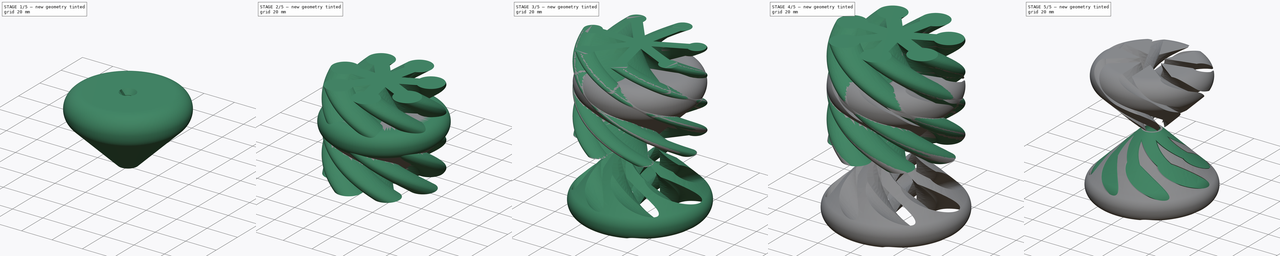
[diagram: build sequence overview — one tinted view per stage of 5, left to right]
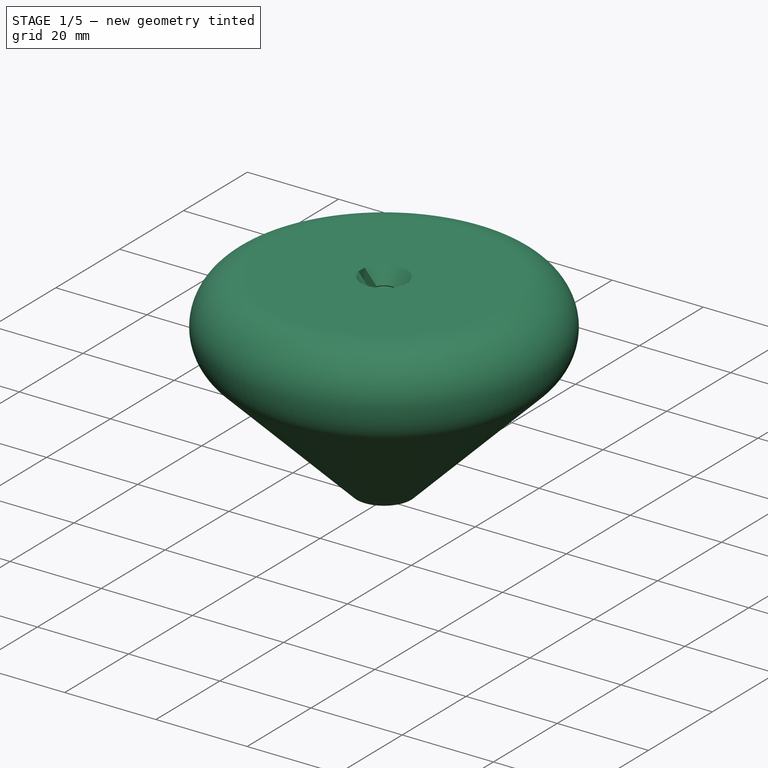
[diagram: stage 1 of 5 — iso view after this stage's code; geometry added in this stage tinted green]
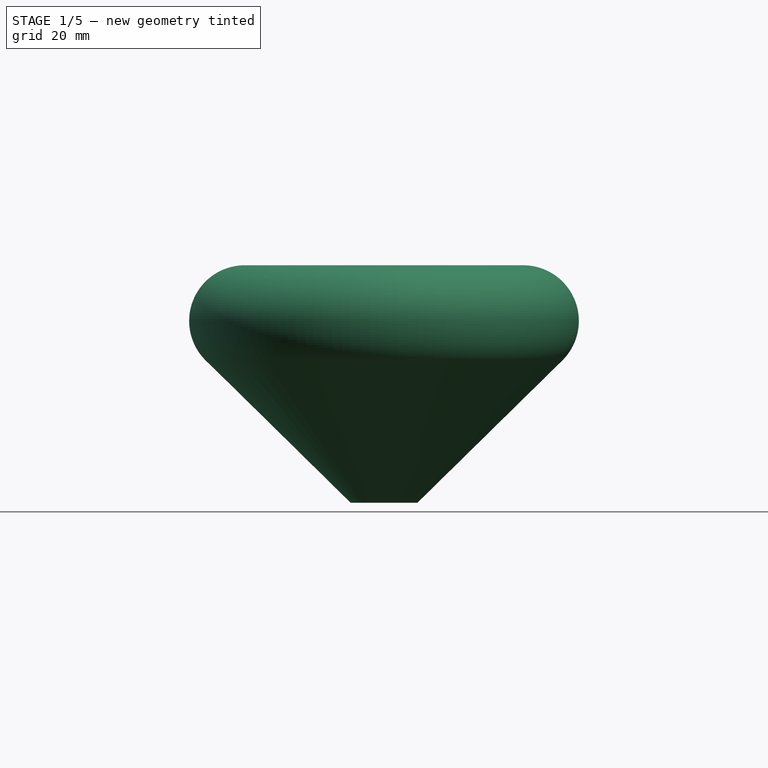
[diagram: stage 1 of 5 — front view after this stage's code; geometry added in this stage tinted green]
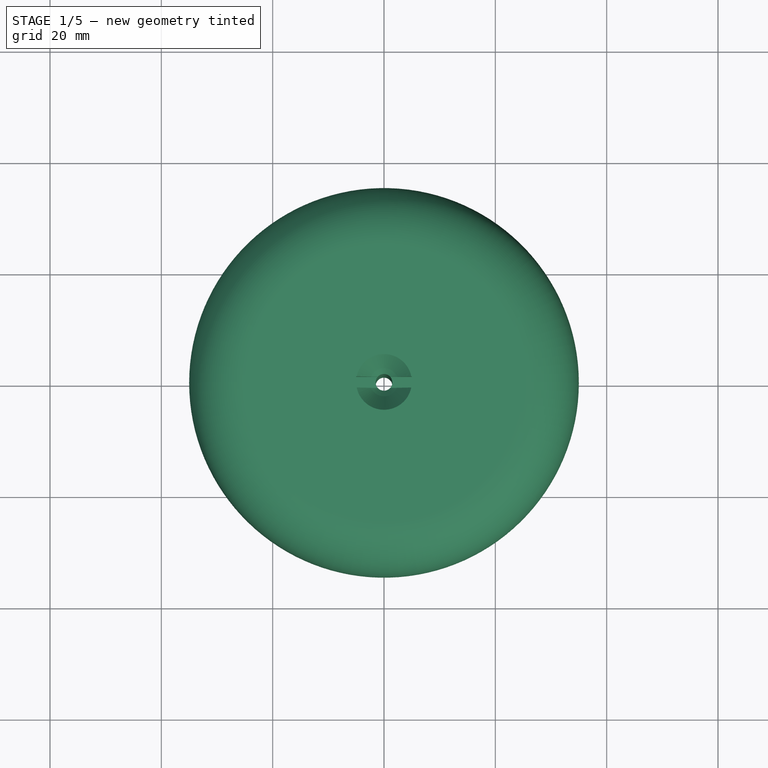
[diagram: stage 1 of 5 — top view after this stage's code; geometry added in this stage tinted green]
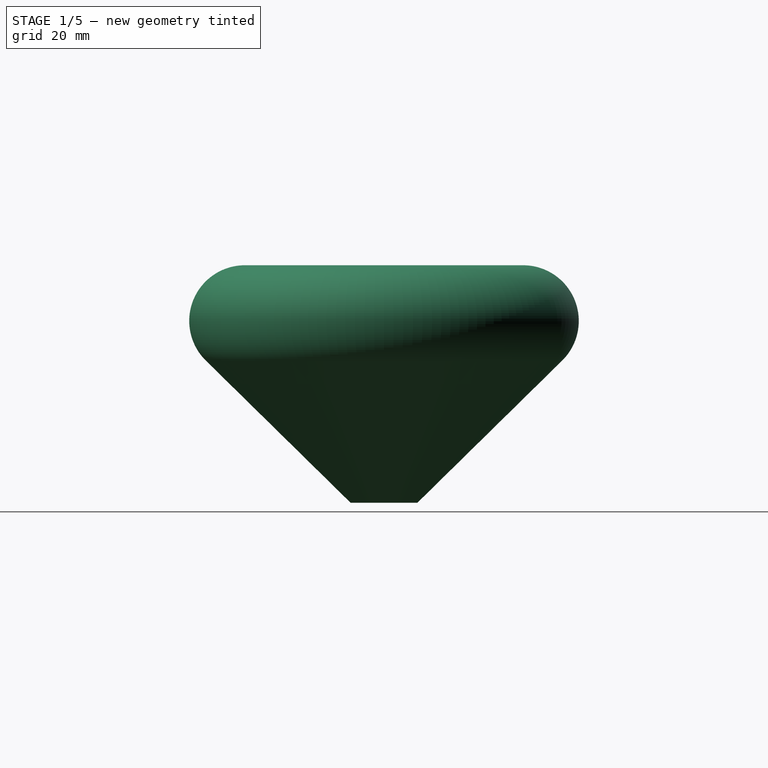
[diagram: stage 1 of 5 — right view after this stage's code; geometry added in this stage tinted green]
FCSTD DOCUMENT  (FreeCAD 1.0R38642 (Git))
Label: SpinningTop
License: Creative Commons Attribution-ShareAlike 4.0
LicenseURL: https://creativecommons.org/licenses/by-sa/4.0/
objects: Sketcher::SketchObject×7, PartDesign::Body×6, PartDesign::AdditiveHelix×3, PartDesign::PolarPattern×3, Part::Cut×3, PartDesign::Revolution×2, PartDesign::Pocket×2, Part::Sphere×1, Spreadsheet::Sheet×1, Part::Offset2D×1, Part::MultiCommon×1, PartDesign::FeatureBase×1
note: 55 computed .brp shape members not serialized (recipe doc carries the construction recipe); baked Part::Feature solids carry a one-line shape summary decoded from their .brp

FEATURE [Sketcher::SketchObject] Sketch  label="profile"
  ArcFitTolerance = 1e-06
  AttachmentSupport = -> [XZ_Plane]
  FullyConstrained = true
  MakeInternals = false
  MapMode = 5
  Placement = pos=(0,0,0) rot=(1,0,0;1.5708rad)
  expr: Constraints[22] = <<dims>>.radius
  expr: Constraints[24] = <<dims>>.ball_radius
  expr: Constraints[27] = <<dims>>.height + 6 mm
  expr: Constraints[4] = <<dims>>.ball_radius + 1 mm
  expr: Constraints[6] = <<dims>>.height * 2 / 3 + 6 mm
  sketch-geometry (18):
    g0: LineSegment StartX=0 StartY=0 StartZ=0 EndX=6 EndY=0 EndZ=0
    g1: LineSegment StartX=6 StartY=0 StartZ=0 EndX=32.0056 EndY=25.5307 EndZ=0
    g2: LineSegment [constr] StartX=0 StartY=42.6667 StartZ=0 EndX=0 EndY=0 EndZ=0
    g3: LineSegment [constr] StartX=5 StartY=52.6667 StartZ=0 EndX=5 EndY=61 EndZ=0
    g4: LineSegment [constr] StartX=5 StartY=61 StartZ=0 EndX=0 EndY=61 EndZ=0
    g5: LineSegment StartX=25 StartY=42.6667 StartZ=0 EndX=15 EndY=42.6667 EndZ=0
    g6: ArcOfCircle CenterX=25 CenterY=32.6667 CenterZ=0 NormalX=0 NormalY=0 NormalZ=1 AngleXU=0 Radius=10 StartAngle=5.48857 EndAngle=7.85398
    g7: GeomPoint [constr] X=49.4603 Y=42.6667 Z=0
    g8: ArcOfCircle [constr] CenterX=15 CenterY=52.6667 CenterZ=0 NormalX=0 NormalY=0 NormalZ=1 AngleXU=0 Radius=10 StartAngle=3.14159 EndAngle=4.71239
    g9: LineSegment [constr] StartX=35 StartY=0 StartZ=0 EndX=35 EndY=40 EndZ=0
    g10: LineSegment [constr] StartX=0 StartY=42.6667 StartZ=0 EndX=0 EndY=61 EndZ=0
    g11: LineSegment [constr] StartX=6 StartY=0 StartZ=0 EndX=32.0056 EndY=26.0056 EndZ=0
    g12: LineSegment StartX=15 StartY=42.6667 StartZ=0 EndX=5 EndY=42.6667 EndZ=0
    g13: LineSegment StartX=0 StartY=0 StartZ=0 EndX=0 EndY=36.7079 EndZ=0
    g14: LineSegment [constr] StartX=0 StartY=36.7079 StartZ=0 EndX=5 EndY=42.6667 EndZ=0
    g15: LineSegment StartX=0 StartY=36.7079 StartZ=0 EndX=2.72388 EndY=39.4318 EndZ=0
    g16: LineSegment StartX=2.72388 StartY=39.4318 StartZ=0 EndX=2.52388 EndY=39.7157 EndZ=0
    g17: LineSegment StartX=2.52388 StartY=39.7157 StartZ=0 EndX=5 EndY=42.6667 EndZ=0
  constraints (52):
    c: Coincident(g-1,g0)
    c: PointOnObject(g0,g-1)
    c: Coincident(g0,g1)
    c: PointOnObject(g2,g-2)
    c: DistanceX(g0,g0) = 6
    c: Coincident(g2,g0)
    c: DistanceY(g2,g2) = 42.6667
    c: Coincident(g3,g4)
    c: Vertical(g3)
    c: Horizontal(g4)
    c: PointOnObject(g4,g-2)
    c: Horizontal(g5)
    c: PointOnObject(g7,g5)
    c: PointOnObject(g7,g1)
    c: Tangent(g5,g6) = -1.5708
    c: Tangent(g1,g6) = -1.5708
    c: Tangent(g5,g8) = 1.5708
    c: Tangent(g3,g8) = 1.5708
    c: PointOnObject(g9,g-1)
    c: Vertical(g9)
    c: DistanceY(g9,g9) = 40
    c: Tangent(g6,g9)
    c: Distance(g9,g2) = 35
    c: Horizontal(g5,g2)
    c: DistanceX(g4,g4) = 5
    c: Radius(g6) = 10
    c: Equal(g6,g8)
    c: DistanceY(g-1,g4) = 61
    c: Coincident(g10,g2)
    c: Coincident(g10,g4)
    c: Coincident(g11,g0)
    c: Vertical(g11,g1)
    c: Angle(g-1,g11,g0) = 0.785398
    c: DistanceY(g-1,g11) = 26.0056  'min_height'
    c: DistanceY(g-1,g1) = 25.5307  'actual_height'
    c: DistanceY(g0,g4) = 61  'corrected_height'
    c: Coincident(g12,g5)
    c: Horizontal(g12)
    c: Vertical(g12,g3)
    c: Coincident(g0,g13)
    c: PointOnObject(g13,g2)
    c: Coincident(g13,g14)
    c: Coincident(g14,g12)
    c: Angle(g14,g-2,g13) = 0.698132
    c: Coincident(g13,g15)
    c: Coincident(g15,g16)
    c: PointOnObject(g16,g14)
    c: Coincident(g16,g17)
    c: Coincident(g17,g12)
    c: Angle(g15,g10,g13) = 0.785398
    c: DistanceX(g16,g15) = 0.2
    c: Equal(g17,g15)
FEATURE [PartDesign::Revolution] Revolution
  Angle = 360
  Angle2 = 60
  Axis = (0,2e-16,1)
  Base = (0,0,0)
  Placement = pos=(0,0,0) rot=(1,0,0;1.5708rad)
  Profile = -> Sketch
  ReferenceAxis = -> Sketch [V_Axis]
  Reversed = true
  Suppressed = false
  Type = 0
FEATURE [Sketcher::SketchObject] Sketch007
  ArcFitTolerance = 1e-06
  AttachmentSupport = -> [Revolution]
  FullyConstrained = true
  MakeInternals = false
  MapMode = 5
  Placement = pos=(0,9.5e-15,42.6667) rot=(0,0,1;3.14159rad)
  sketch-geometry (1):
    g0: Circle CenterX=0 CenterY=0 CenterZ=0 NormalX=0 NormalY=0 NormalZ=1 AngleXU=0 Radius=1.5
  constraints (2):
    c: Coincident(g0,g-1)
    c: Diameter(g0) = 3
FEATURE [PartDesign::Pocket] Pocket
  BaseFeature = -> Revolution
  Direction = (0,0,-1)
  Length = 5
  Length2 = 5
  Placement = pos=(0,0,0) rot=(1,0,0;1.5708rad)
  Profile = -> Sketch007
  ReferenceAxis = -> Sketch007 [N_Axis]
  Suppressed = false
  Type = 1
FEATURE [Sketcher::SketchObject] Sketch008
  ArcFitTolerance = 1e-06
  AttachmentSupport = -> [Revolution]
  ExternalGeometry = -> [Revolution]
  FullyConstrained = true
  MakeInternals = false
  MapMode = 5
  Placement = pos=(0,9.5e-15,42.6667) rot=(0,0,1;3.14159rad)
  sketch-geometry (5):
    g0: LineSegment StartX=-5 StartY=-1 StartZ=0 EndX=5 EndY=-1 EndZ=0
    g1: LineSegment StartX=5 StartY=-1 StartZ=0 EndX=5 EndY=1 EndZ=0
    g2: LineSegment StartX=5 StartY=1 StartZ=0 EndX=-5 EndY=1 EndZ=0
    g3: LineSegment StartX=-5 StartY=1 StartZ=0 EndX=-5 EndY=-1 EndZ=0
    g4: GeomPoint [constr] X=0 Y=0 Z=0
  constraints (12):
    c: Coincident(g0,g1)
    c: Coincident(g1,g2)
    c: Coincident(g2,g3)
    c: Coincident(g3,g0)
    c: Horizontal(g0)
    c: Horizontal(g2)
    c: Vertical(g1)
    c: Vertical(g3)
    c: Symmetric(g2,g0,g4)
    c: Distance(g0,g2) = 2
    c: Coincident(g4,g-1)
    c: Tangent(g1,g-3)
FEATURE [PartDesign::Pocket] Pocket001
  BaseFeature = -> Pocket
  Direction = (0,0,-1)
  Length = 5
  Length2 = 5
  Placement = pos=(0,0,0) rot=(1,0,0;1.5708rad)
  Profile = -> Sketch008
  ReferenceAxis = -> Sketch008 [N_Axis]
  Suppressed = false
  Type = 0
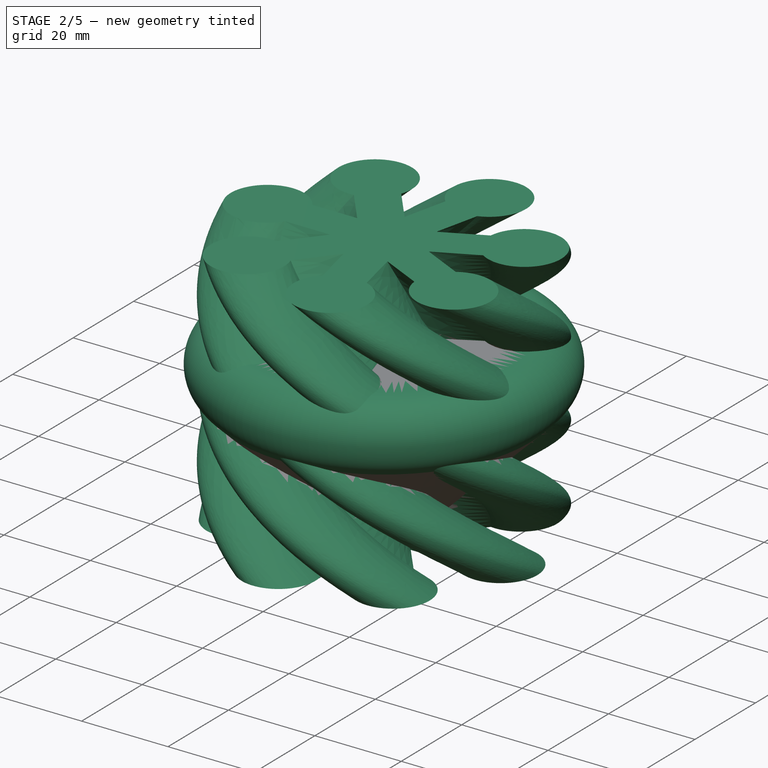
[diagram: stage 2 of 5 — iso view after this stage's code; geometry added in this stage tinted green]
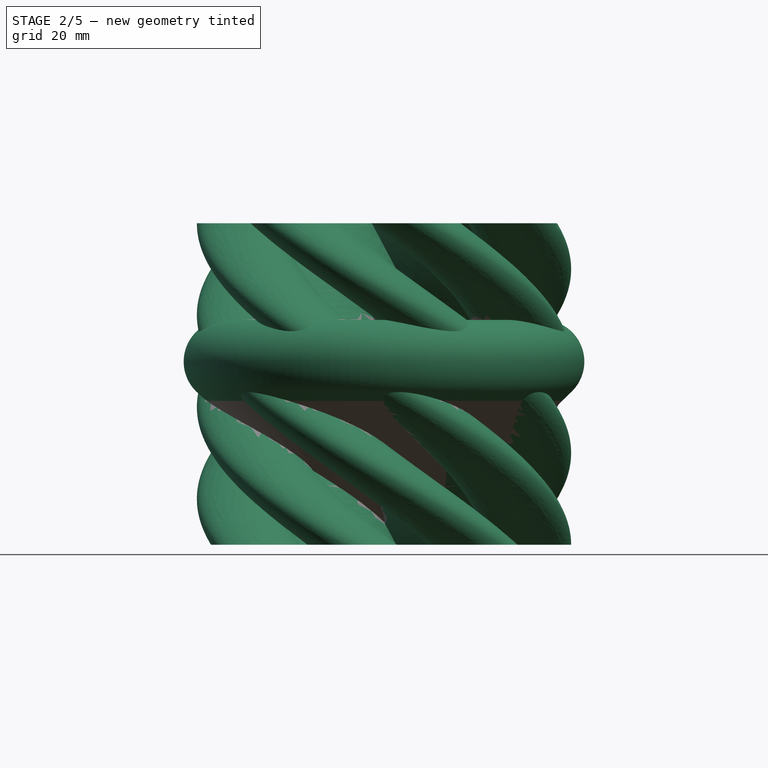
[diagram: stage 2 of 5 — front view after this stage's code; geometry added in this stage tinted green]
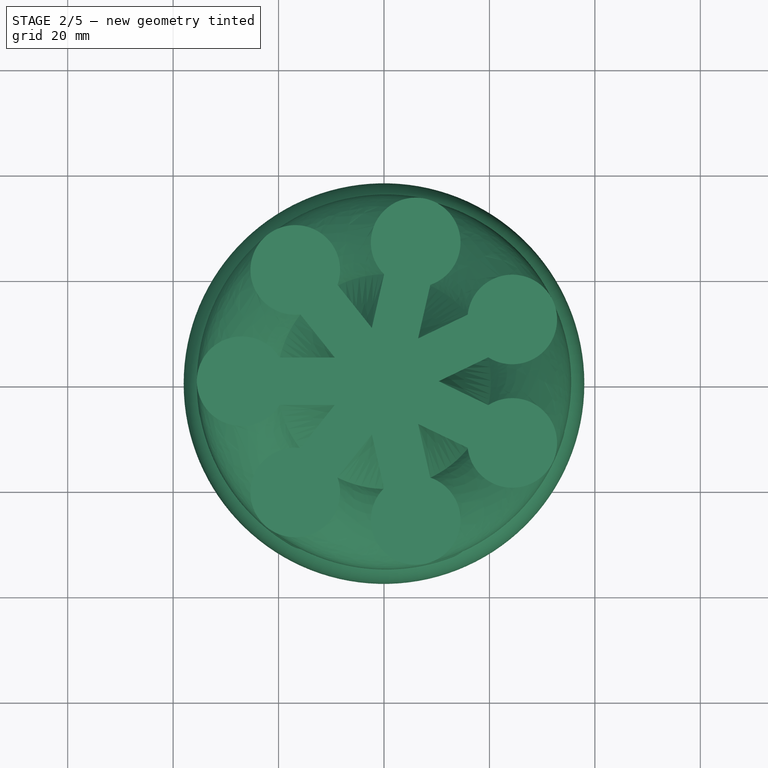
[diagram: stage 2 of 5 — top view after this stage's code; geometry added in this stage tinted green]
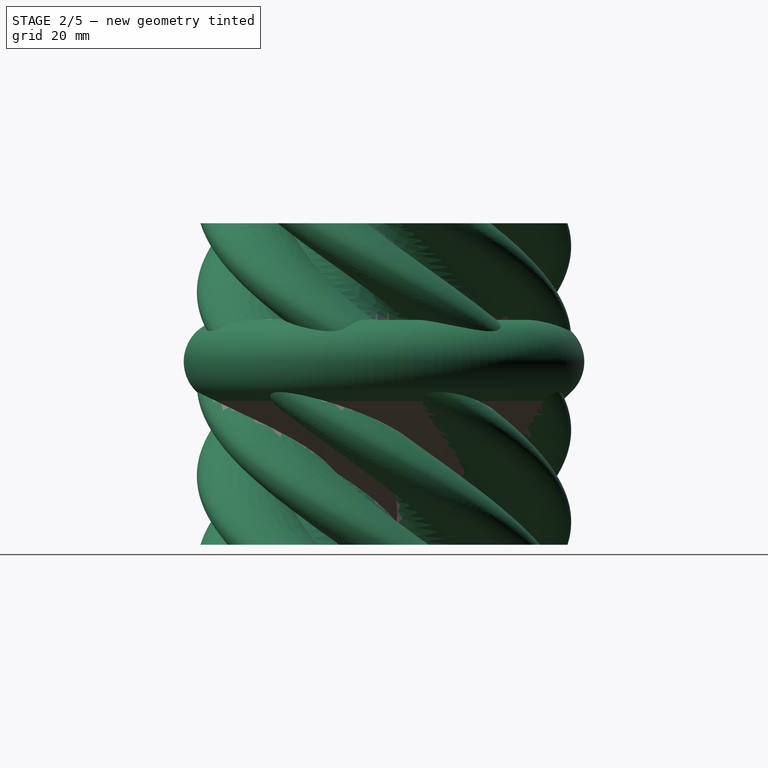
[diagram: stage 2 of 5 — right view after this stage's code; geometry added in this stage tinted green]
FEATURE [PartDesign::Body] Body005
  AllowCompound = false
  Group = -> [Sketch002,AdditiveHelix001,PolarPattern001]
  Origin = -> Origin005
  Tip = -> PolarPattern001
FEATURE [Sketcher::SketchObject] Sketch005
  ArcFitTolerance = 1e-06
  AttachmentSupport = -> [XZ_Plane006]
  FullyConstrained = true
  MakeInternals = false
  MapMode = 5
  Placement = pos=(0,0,0) rot=(1,0,0;1.5708rad)
  expr: Constraints[14] = Sketch.Constraints[20]
  expr: Constraints[16] = Sketch.Constraints[22]
  expr: Constraints[17] = Sketch.Constraints[25]
  expr: Constraints[20] = Sketch.Constraints[32]
  expr: Constraints[4] = Sketch.Constraints[4]
  expr: Constraints[6] = Sketch.Constraints[6]
  sketch-geometry (12):
    g0: LineSegment StartX=0 StartY=0 StartZ=0 EndX=6 EndY=0 EndZ=0
    g1: LineSegment StartX=6 StartY=0 StartZ=0 EndX=32.0056 EndY=25.5307 EndZ=0
    g2: LineSegment StartX=0 StartY=42.6667 StartZ=0 EndX=0 EndY=0 EndZ=0
    g3: LineSegment StartX=25 StartY=42.6667 StartZ=0 EndX=0 EndY=42.6667 EndZ=0
    g4: ArcOfCircle [constr] CenterX=25 CenterY=32.6667 CenterZ=0 NormalX=0 NormalY=0 NormalZ=1 AngleXU=0 Radius=10 StartAngle=5.48857 EndAngle=7.85398
    g5: GeomPoint [constr] X=49.4603 Y=42.6667 Z=0
    g6: LineSegment [constr] StartX=35 StartY=0 StartZ=0 EndX=35 EndY=40 EndZ=0
    g7: LineSegment [constr] StartX=6 StartY=0 StartZ=0 EndX=32.0056 EndY=26.0056 EndZ=0
    g8: LineSegment StartX=32.0056 StartY=25.5307 StartZ=0 EndX=35.6268 EndY=29.0859 EndZ=0
    g9: LineSegment [constr] StartX=38 StartY=0 StartZ=0 EndX=38 EndY=40 EndZ=0
    g10: LineSegment StartX=25 StartY=42.6667 StartZ=0 EndX=30.0747 EndY=42.6667 EndZ=0
    g11: ArcOfCircle CenterX=30.0747 CenterY=34.7413 CenterZ=0 NormalX=0 NormalY=0 NormalZ=1 AngleXU=0 Radius=7.92535 StartAngle=5.48857 EndAngle=7.85398
  constraints (34):
    c: Coincident(g-1,g0)
    c: PointOnObject(g0,g-1)
    c: Coincident(g0,g1)
    c: PointOnObject(g2,g-2)
    c: DistanceX(g0,g0) = 6
    c: Coincident(g2,g0)
    c: DistanceY(g2,g2) = 42.6667
    c: Horizontal(g3)
    c: PointOnObject(g5,g3)
    c: PointOnObject(g5,g1)
    c: Tangent(g3,g4) = -1.5708
    c: Tangent(g1,g4) = -1.5708
    c: PointOnObject(g6,g-1)
    c: Vertical(g6)
    c: DistanceY(g6,g6) = 40
    c: Tangent(g4,g6)
    c: Distance(g6,g2) = 35
    c: Radius(g4) = 10
    c: Coincident(g7,g0)
    c: Vertical(g7,g1)
    c: Angle(g-1,g7,g0) = 0.785398
    c: DistanceY(g-1,g7) = 26.0056  'min_height'
    c: DistanceY(g-1,g1) = 25.5307  'actual_height'
    c: Tangent(g8,g1) = -1.5708
    c: PointOnObject(g9,g-1)
    c: Vertical(g9)
    c: Horizontal(g9,g6)
    c: DistanceX(g6,g9) = 3
    c: Coincident(g10,g3)
    c: Horizontal(g10)
    c: Tangent(g11,g8) = -1.5708
    c: Tangent(g11,g10) = 1.5708
    c: Tangent(g11,g9)
    c: Coincident(g3,g2)
FEATURE [PartDesign::Revolution] Revolution001
  Angle = 360
  Angle2 = 60
  Axis = (0,2e-16,1)
  Base = (0,0,0)
  Placement = pos=(0,0,0) rot=(1,0,0;1.5708rad)
  Profile = -> Sketch005
  ReferenceAxis = -> Sketch005 [V_Axis]
  Reversed = true
  Suppressed = false
  Type = 0
FEATURE [PartDesign::Body] Body006  label="Base_body"
  AllowCompound = false
  Group = -> [Sketch005,Revolution001]
  Origin = -> Origin006
  Tip = -> Revolution001
FEATURE [Sketcher::SketchObject] Sketch006
  ArcFitTolerance = 1e-06
  AttachmentSupport = -> [XY_Plane007]
  FullyConstrained = true
  MakeInternals = false
  MapMode = 5
  expr: Constraints[13] = Sketch001.Constraints[13]
  expr: Constraints[14] = Sketch001.Constraints[14]
  expr: Constraints[21] = <<dims>>.base_tolerance
  expr: Constraints[22] = <<dims>>.base_tolerance
  expr: Constraints[6] = Sketch001.Constraints[6]
  sketch-geometry (11):
    g0: LineSegment [constr] StartX=0 StartY=-4 StartZ=0 EndX=20.0718 EndY=-4 EndZ=0
    g1: LineSegment [constr] StartX=0 StartY=4 StartZ=0 EndX=20.0718 EndY=4 EndZ=0
    g2: ArcOfCircle [constr] CenterX=27 CenterY=1.1e-15 CenterZ=0 NormalX=0 NormalY=0 NormalZ=1 AngleXU=0 Radius=8 StartAngle=3.66519 EndAngle=8.90118
    g3: LineSegment [constr] StartX=0 StartY=0 StartZ=0 EndX=35 EndY=1.4e-15 EndZ=0
    g4: LineSegment [constr] StartX=0 StartY=4 StartZ=0 EndX=0 EndY=-4 EndZ=0
    g5: LineSegment StartX=-0.5 StartY=4 StartZ=0 EndX=-0.5 EndY=-4 EndZ=0
    g6: ArcOfCircle CenterX=0 CenterY=-4 CenterZ=0 NormalX=0 NormalY=0 NormalZ=-1 AngleXU=-3.14159 Radius=0.5 StartAngle=1.5708 EndAngle=3.14159
    g7: LineSegment StartX=0 StartY=-4.5 StartZ=0 EndX=19.7889 EndY=-4.5 EndZ=0
    g8: ArcOfCircle CenterX=27 CenterY=1.1e-15 CenterZ=0 NormalX=0 NormalY=0 NormalZ=1 AngleXU=0 Radius=8.5 StartAngle=3.6995 EndAngle=8.86687
    g9: LineSegment StartX=-1e-16 StartY=4.5 StartZ=0 EndX=19.7889 EndY=4.5 EndZ=0
    g10: ArcOfCircle CenterX=0 CenterY=4 CenterZ=0 NormalX=0 NormalY=0 NormalZ=-1 AngleXU=-1.5708 Radius=0.5 StartAngle=1.5708 EndAngle=3.14159
  constraints (29):
    c: Parallel(g1,g0)
    c: Equal(g1,g0)
    c: Coincident(g2,g1)
    c: Coincident(g2,g0)
    c: PointOnObject(g3,g2)
    c: PointOnObject(g2,g3)
    c: Radius(g2) = 8
    c: Horizontal(g1)
    c: Symmetric(g0,g1,g-1)
    c: Coincident(g3,g-1)
    c: Coincident(g4,g1)
    c: Coincident(g4,g0)
    c: Vertical(g4)
    c: Distance(g3) = 35
    c: DistanceY(g0,g1) = 8
    c: Tangent(g5,g6) = -1.5708
    c: Tangent(g5,g10) = -1.5708
    c: Tangent(g6,g7) = -1.5708
    c: Coincident(g7,g8)
    c: Coincident(g8,g9)
    c: Tangent(g9,g10) = 1.5708
    c: Distance(g8,g2) = 0.5
    c: Radius(g10) = 0.5
    c: Equal(g6,g10)
    c: Coincident(g6,g0)
    c: Coincident(g10,g1)
    c: Horizontal(g9)
    c: Horizontal(g7)
    c: Coincident(g8,g2)
FEATURE [PartDesign::AdditiveHelix] AdditiveHelix002
  Angle = 0
  Axis = (0,0,1)
  Base = (0,0,0)
  Growth = 0
  HasBeenEdited = true
  Height = 61
  LeftHanded = true
  Mode = 0
  Outside = false
  Pitch = 122
  Profile = -> Sketch006
  ReferenceAxis = -> Sketch006 [N_Axis]
  Suppressed = false
  Turns = 0.5
  expr: Height = <<profile>>.Constraints.corrected_height
  expr: Pitch = <<profile>>.Constraints.corrected_height * 2
FEATURE [PartDesign::PolarPattern] PolarPattern002
  Angle = 360
  Axis = -> Z_Axis007
  BaseFeature = -> AdditiveHelix002
  Mode = 0
  Occurrences = 7
  Offset = 120
  Suppressed = false
  TransformMode = 1
  expr: Occurrences = <<dims>>.vanes
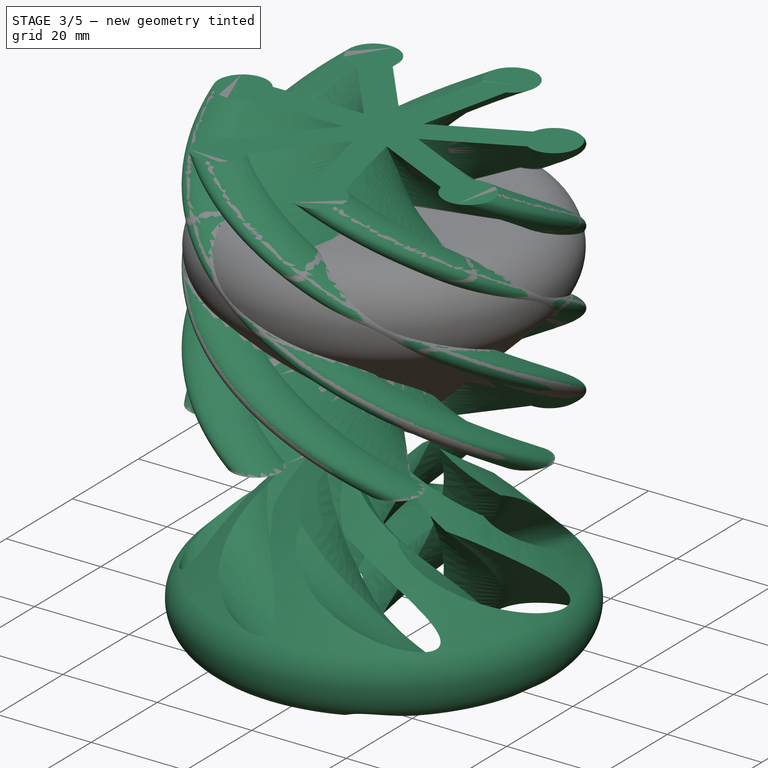
[diagram: stage 3 of 5 — iso view after this stage's code; geometry added in this stage tinted green]
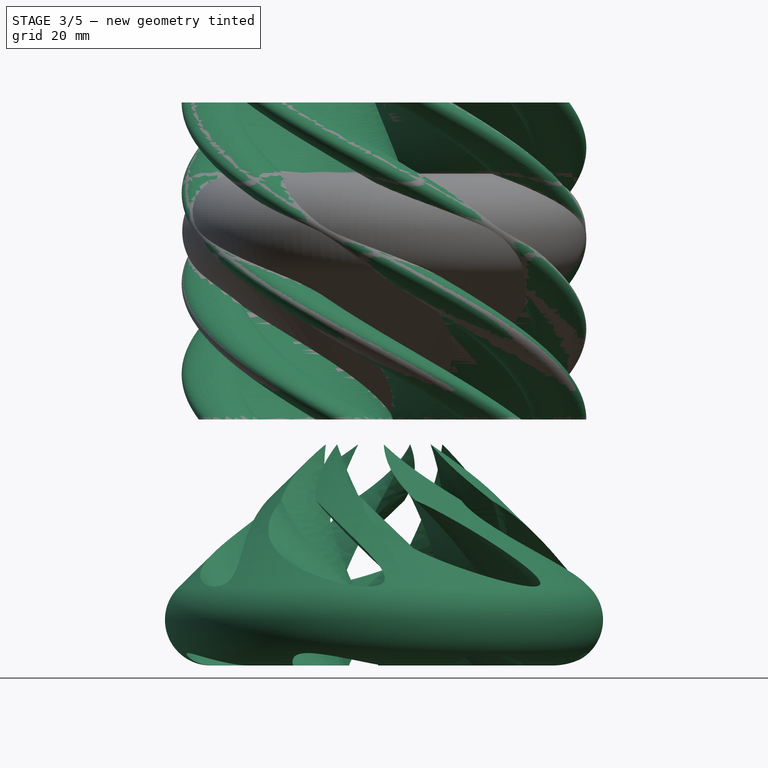
[diagram: stage 3 of 5 — front view after this stage's code; geometry added in this stage tinted green]
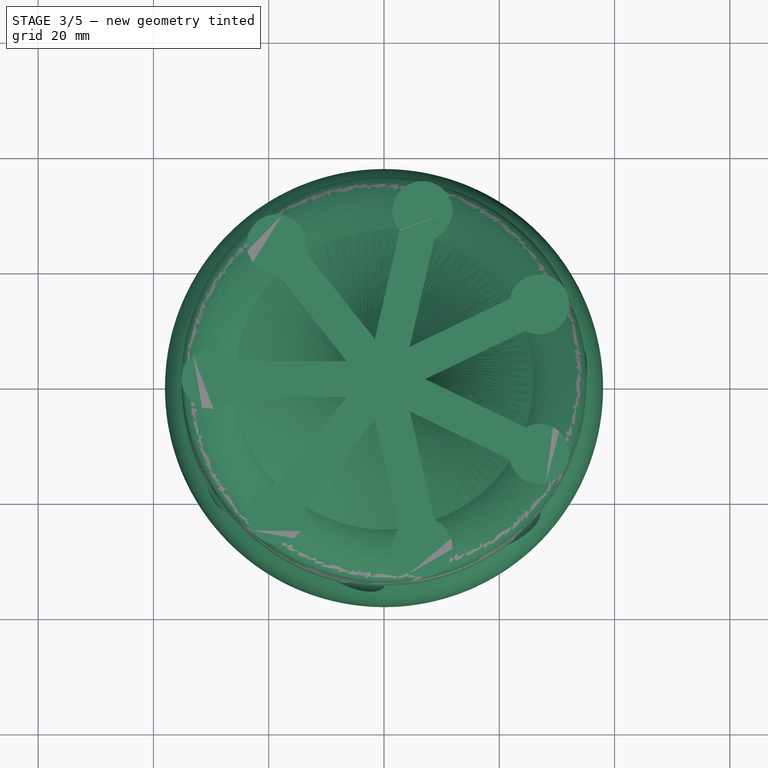
[diagram: stage 3 of 5 — top view after this stage's code; geometry added in this stage tinted green]
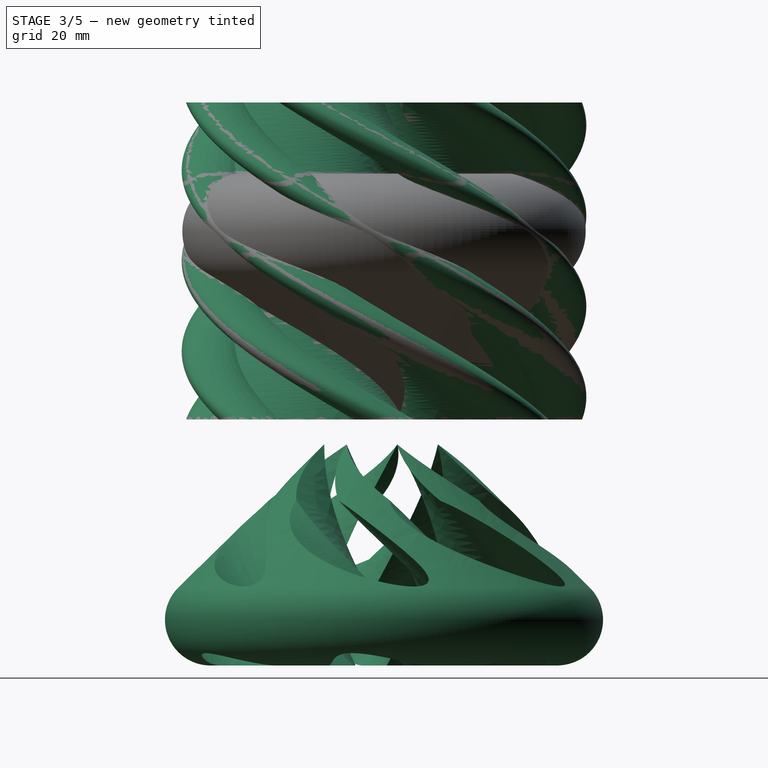
[diagram: stage 3 of 5 — right view after this stage's code; geometry added in this stage tinted green]
FEATURE [PartDesign::Body] Body001  label="helix"
  AllowCompound = false
  Group = -> [Sketch001,AdditiveHelix,PolarPattern]
  Origin = -> Origin001
  Tip = -> PolarPattern
FEATURE [Spreadsheet::Sheet] Spreadsheet  label="dims"
  cells = A1='radius; B1(radius)==35 mm; A2='height; B2(height)==55 mm; A3='ball radius; B3(ball_radius)==5 mm; A4='base tolerance; B4(base_tolerance)==0.5 mm; A5='vanes; B5(vanes)=7
FEATURE [Part::Offset2D] Offset2D
  Fill = false
  Intersection = false
  Join = 0
  Mode = 1
  SelfIntersection = false
  Source = -> Sketch001
  Value = 0.5
  expr: Value = <<dims>>.base_tolerance
FEATURE [Sketcher::SketchObject] Sketch002
  ArcFitTolerance = 1e-06
  FullyConstrained = false
  MakeInternals = false
  sketch-geometry (6):
    g0: LineSegment StartX=-0.1 StartY=3.00343 StartZ=0 EndX=-0.1 EndY=-3.00343 EndZ=0
    g1: ArcOfCircle CenterX=0 CenterY=-3.00343 CenterZ=0 NormalX=0 NormalY=0 NormalZ=1 AngleXU=0 Radius=0.1 StartAngle=3.14159 EndAngle=4.71239
    g2: LineSegment StartX=0 StartY=-3.10343 StartZ=0 EndX=25.7276 EndY=-3.10343 EndZ=0
    g3: ArcOfCircle CenterX=29.9 CenterY=1.4e-15 CenterZ=0 NormalX=0 NormalY=0 NormalZ=1 AngleXU=0 Radius=5.2 StartAngle=3.78112 EndAngle=8.78525
    g4: LineSegment StartX=0 StartY=3.10343 StartZ=0 EndX=25.7276 EndY=3.10343 EndZ=0
    g5: ArcOfCircle CenterX=0 CenterY=3.00343 CenterZ=0 NormalX=0 NormalY=0 NormalZ=1 AngleXU=-1.5708 Radius=0.1 StartAngle=3.14159 EndAngle=4.71239
  constraints (9):
    c: Vertical(g0)
    c: Coincident(g0,g1)
    c: Coincident(g1,g2)
    c: Horizontal(g2)
    c: Coincident(g2,g3)
    c: Coincident(g3,g4)
    c: Horizontal(g4)
    c: Coincident(g4,g5)
    c: Coincident(g5,g0)
FEATURE [PartDesign::AdditiveHelix] AdditiveHelix001
  Angle = 0
  Axis = (0,0,1)
  Base = (0,0,0)
  Growth = 0
  HasBeenEdited = true
  Height = 55
  LeftHanded = true
  Mode = 0
  Outside = false
  Pitch = 110
  Profile = -> Sketch002
  ReferenceAxis = -> Sketch002 [N_Axis]
  Suppressed = false
  Turns = 0.5
  expr: Height = <<dims>>.height
  expr: Pitch = <<dims>>.height * 2
FEATURE [PartDesign::PolarPattern] PolarPattern001
  Angle = 360
  Axis = -> Sketch002 [N_Axis]
  BaseFeature = -> AdditiveHelix001
  Mode = 0
  Occurrences = 7
  Offset = 120
  Originals = -> [AdditiveHelix001]
  Suppressed = false
  TransformMode = 0
FEATURE [PartDesign::Body] Body007  label="Base_spiral"
  AllowCompound = false
  Group = -> [Sketch006,AdditiveHelix002,PolarPattern002]
  Origin = -> Origin007
  Tip = -> PolarPattern002
FEATURE [Part::Cut] Cut002  label="Base"
  Base = -> Body006
  Placement = pos=(0,0,0) rot=(0,1,0;3.14159rad)
  Tool = -> Body007
FEATURE [PartDesign::FeatureBase] Clone
  BaseFeature = -> Body
  Suppressed = false
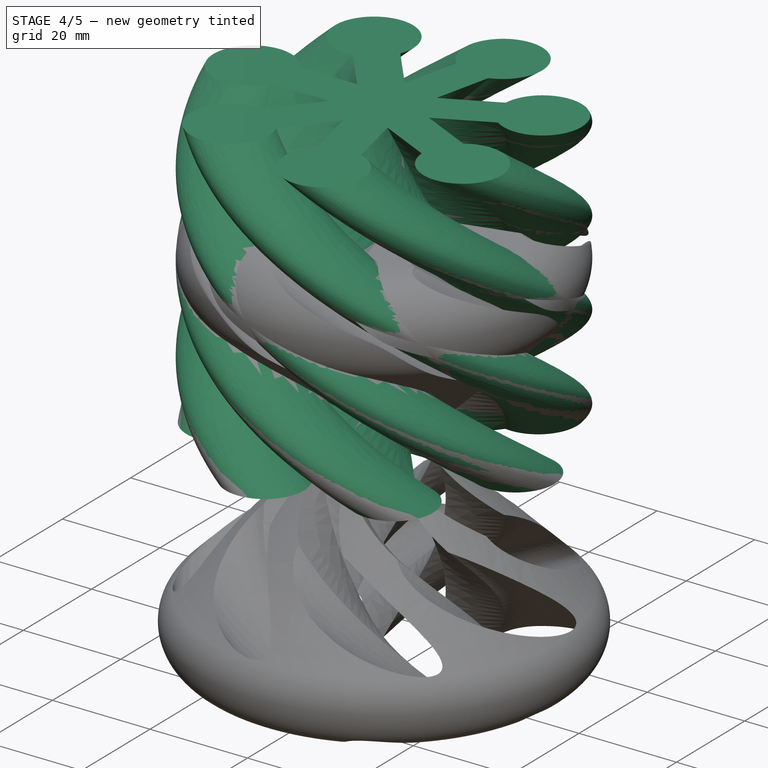
[diagram: stage 4 of 5 — iso view after this stage's code; geometry added in this stage tinted green]
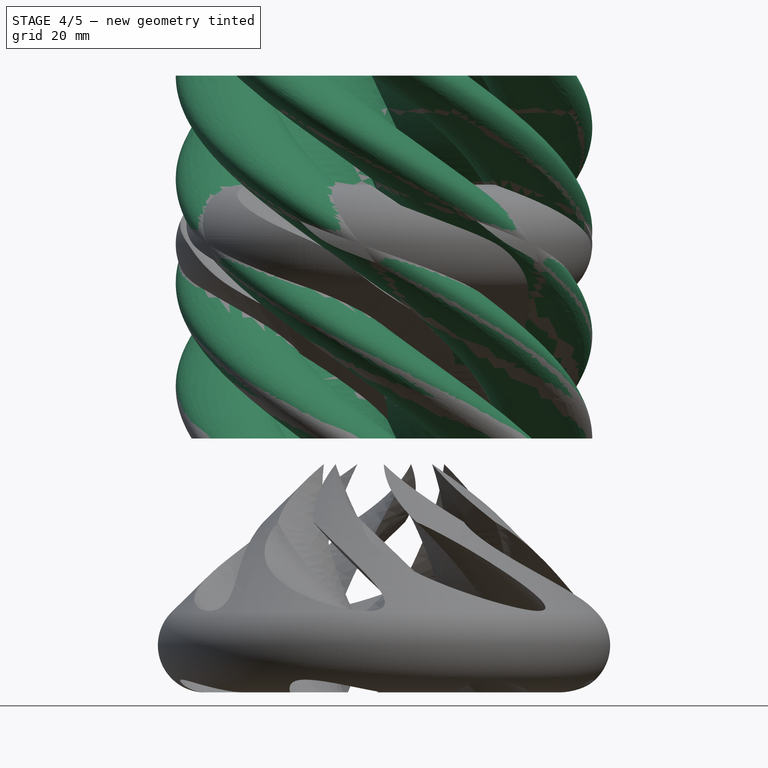
[diagram: stage 4 of 5 — front view after this stage's code; geometry added in this stage tinted green]
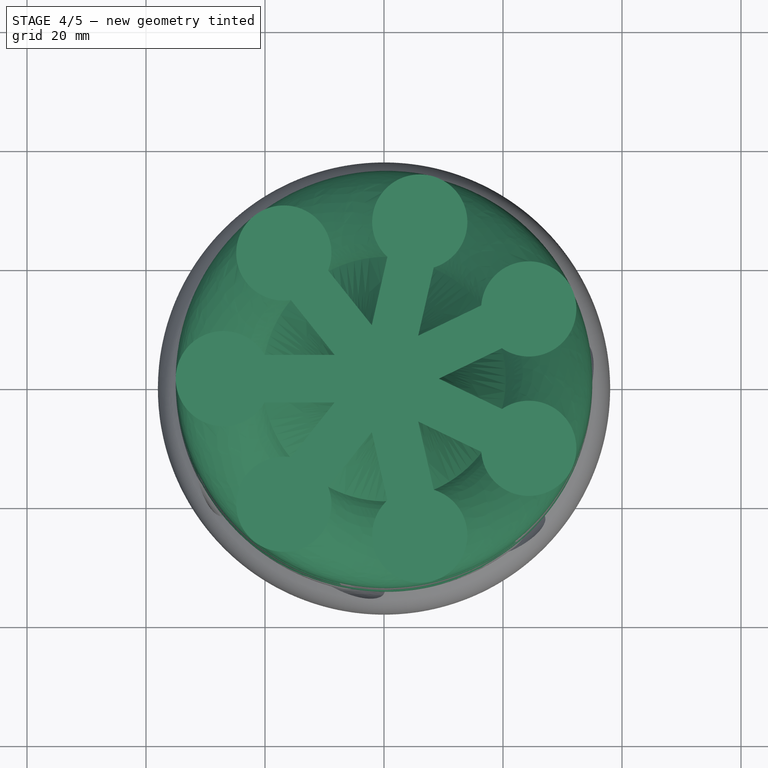
[diagram: stage 4 of 5 — top view after this stage's code; geometry added in this stage tinted green]
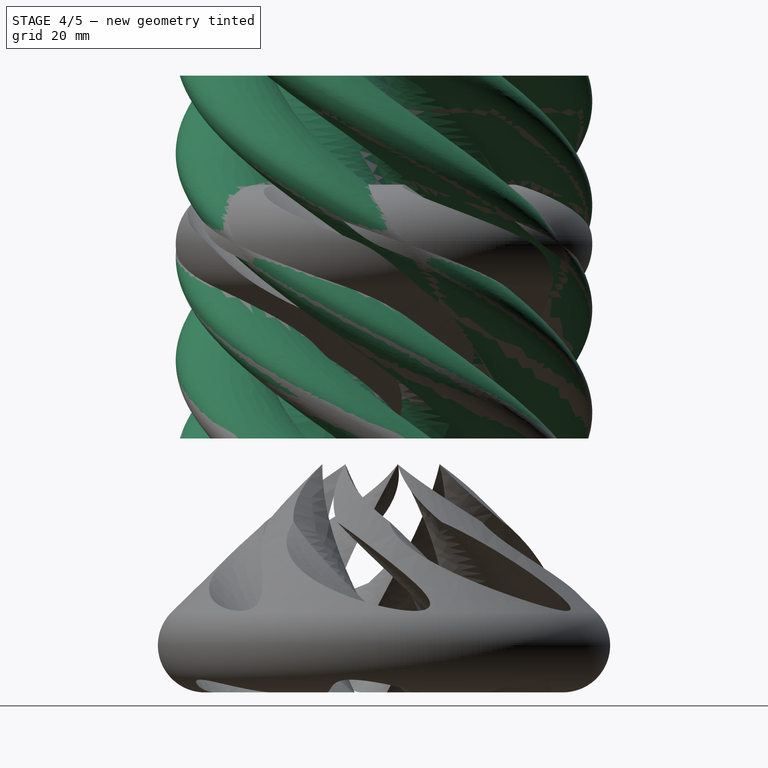
[diagram: stage 4 of 5 — right view after this stage's code; geometry added in this stage tinted green]
FEATURE [Sketcher::SketchObject] Sketch001
  ArcFitTolerance = 1e-06
  AttachmentSupport = -> [XY_Plane001]
  FullyConstrained = true
  MakeInternals = false
  MapMode = 5
  expr: Constraints[13] = <<dims>>.radius
  expr: Constraints[6] = <<dims>>.ball_radius + 3 mm
  sketch-geometry (5):
    g0: LineSegment StartX=0 StartY=-4 StartZ=0 EndX=20.0718 EndY=-4 EndZ=0
    g1: LineSegment StartX=0 StartY=4 StartZ=0 EndX=20.0718 EndY=4 EndZ=0
    g2: ArcOfCircle CenterX=27 CenterY=-1e-15 CenterZ=0 NormalX=0 NormalY=0 NormalZ=1 AngleXU=0 Radius=8 StartAngle=3.66519 EndAngle=8.90118
    g3: LineSegment [constr] StartX=0 StartY=0 StartZ=0 EndX=35 EndY=-1.3e-15 EndZ=0
    g4: LineSegment StartX=0 StartY=4 StartZ=0 EndX=0 EndY=-4 EndZ=0
  constraints (15):
    c: Parallel(g1,g0)
    c: Equal(g1,g0)
    c: Coincident(g2,g1)
    c: Coincident(g2,g0)
    c: PointOnObject(g3,g2)
    c: PointOnObject(g2,g3)
    c: Radius(g2) = 8
    c: Horizontal(g1)
    c: Symmetric(g0,g1,g-1)
    c: Coincident(g3,g-1)
    c: Coincident(g4,g1)
    c: Coincident(g4,g0)
    c: Vertical(g4)
    c: Distance(g3) = 35
    c: DistanceY(g0,g1) = 8
FEATURE [PartDesign::AdditiveHelix] AdditiveHelix
  Angle = 0
  Axis = (1e-16,1e-16,1)
  Base = (0,0,0)
  Growth = 0
  HasBeenEdited = true
  Height = 61
  LeftHanded = true
  Mode = 0
  Outside = false
  Pitch = 122
  Profile = -> Sketch001
  ReferenceAxis = -> Z_Axis001
  Suppressed = false
  Turns = 0.5
  expr: Height = <<profile>>.Constraints.corrected_height
  expr: Pitch = <<profile>>.Constraints.corrected_height * 2
FEATURE [PartDesign::PolarPattern] PolarPattern
  Angle = 360
  Axis = -> Sketch001 [N_Axis]
  BaseFeature = -> AdditiveHelix
  Mode = 0
  Occurrences = 7
  Offset = 120
  Originals = -> [AdditiveHelix]
  Suppressed = false
  TransformMode = 0
FEATURE [PartDesign::Body] Body004  label="base"
  AllowCompound = false
  Group = -> [Clone]
  Origin = -> Origin004
  Tip = -> Clone
FEATURE [Part::Cut] Cut001
  Base = -> Body004
  Tool = -> Body005
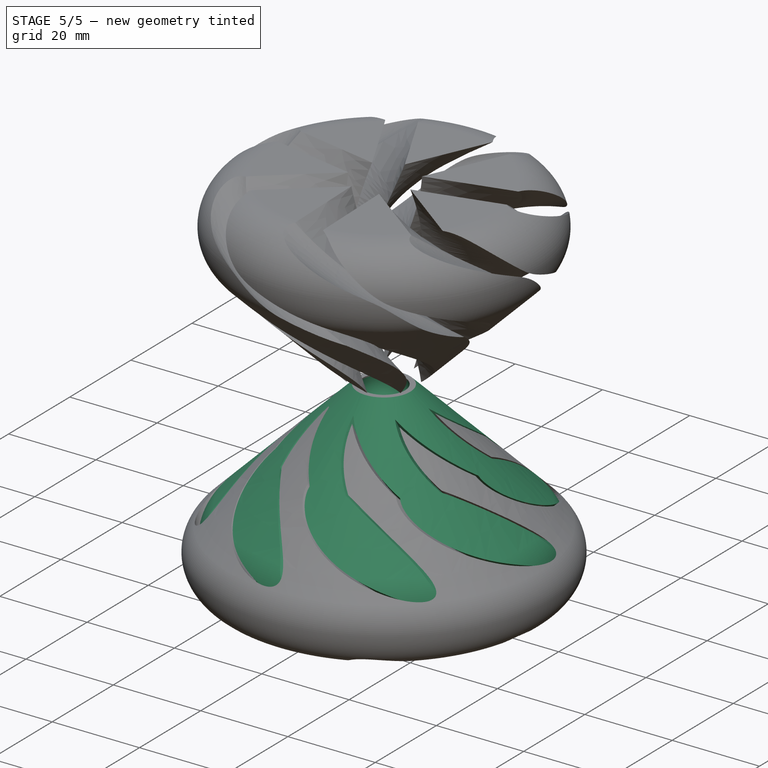
[diagram: stage 5 of 5 — iso view after this stage's code; geometry added in this stage tinted green]
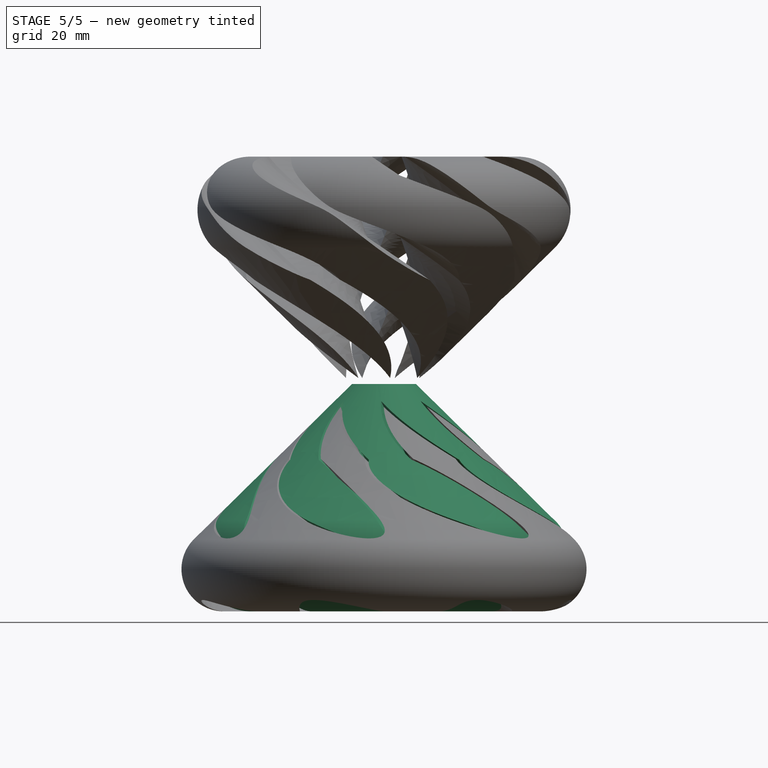
[diagram: stage 5 of 5 — front view after this stage's code; geometry added in this stage tinted green]
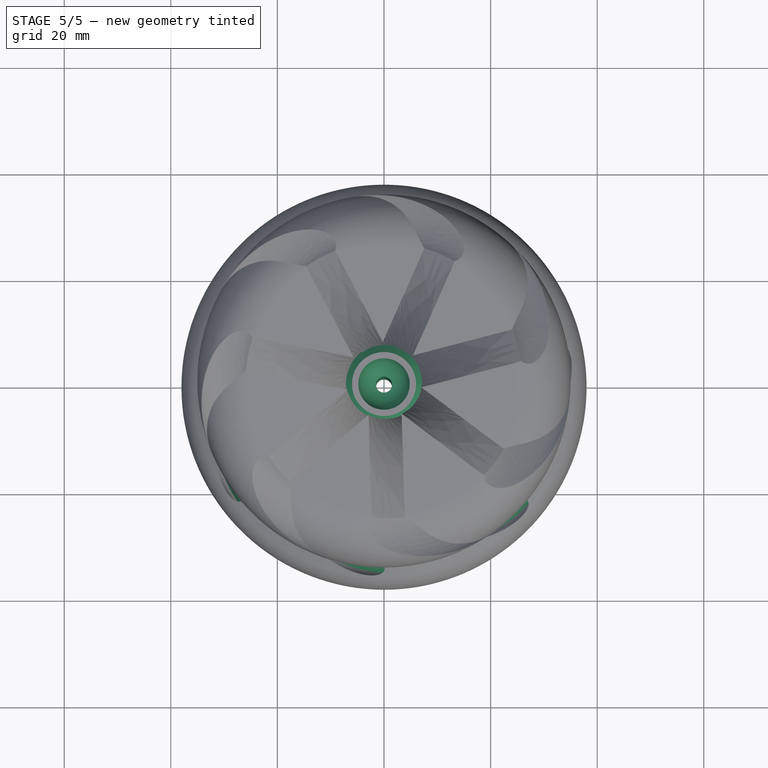
[diagram: stage 5 of 5 — top view after this stage's code; geometry added in this stage tinted green]
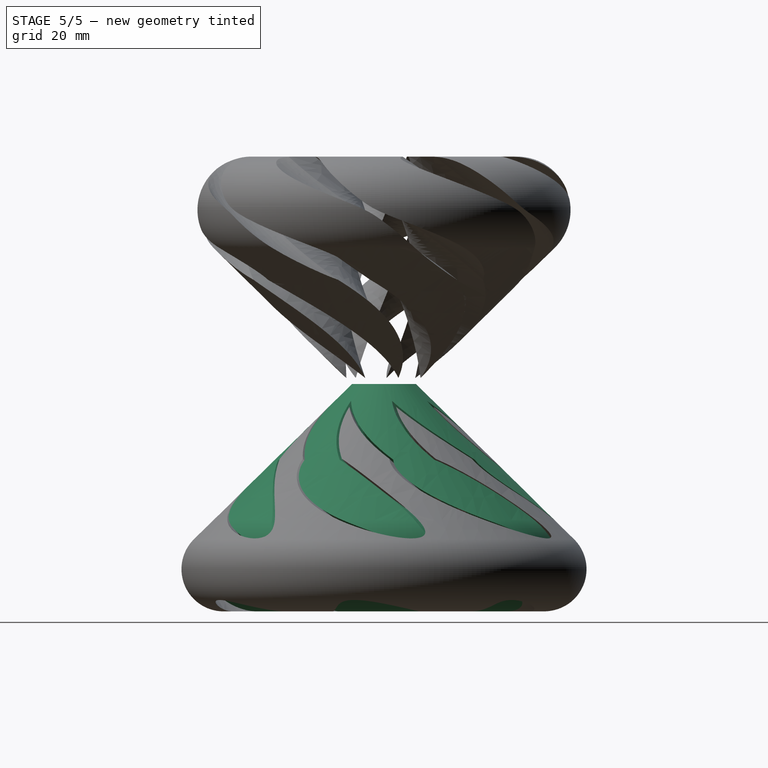
[diagram: stage 5 of 5 — right view after this stage's code; geometry added in this stage tinted green]
FEATURE [Part::Sphere] Sphere
  Angle1 = -90
  Angle2 = 90
  Angle3 = 360
  AttacherType = Attacher::AttachEngine3D
  Placement = pos=(0,0,1.5) rot=(0,0,1;0rad)
  Radius = 5.05
  expr: Radius = <<dims>>.ball_radius + 0.05 mm
FEATURE [PartDesign::Body] Body
  AllowCompound = false
  Group = -> [Sketch,Revolution,Sketch007,Pocket,Sketch008,Pocket001]
  Origin = -> Origin
  Tip = -> Pocket001
FEATURE [Part::Cut] Cut  label="top"
  Base = -> Body
  Tool = -> Sphere
FEATURE [Part::MultiCommon] Common  label="helix-spinner"
  Placement = pos=(0,0,0) rot=(0,1,0;3.14159rad)
  Shapes = -> [Body001,Cut]
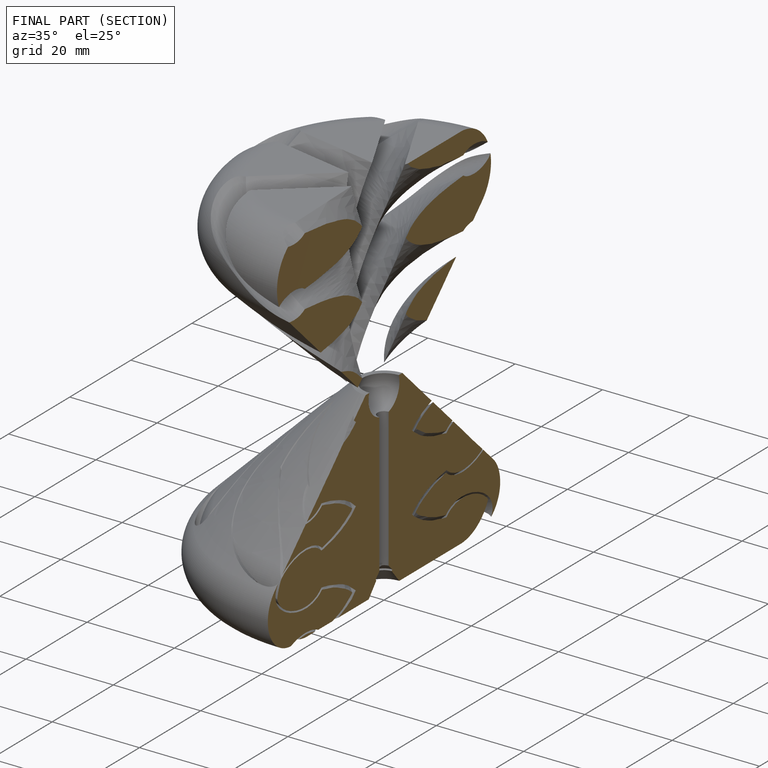
[diagram: finished part — half-section view (interior)]
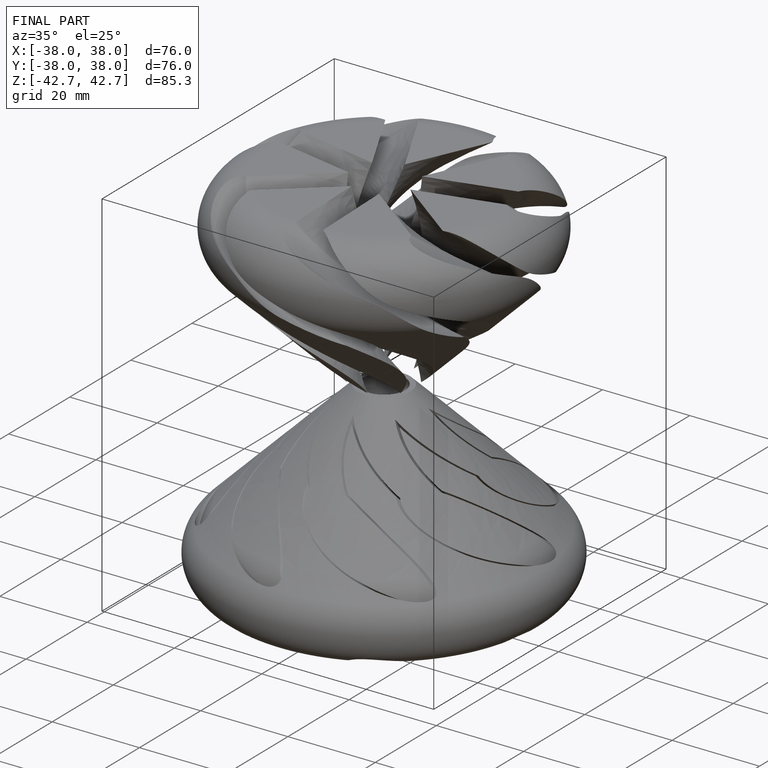
[diagram: finished part — iso view with bounding-box wireframe]
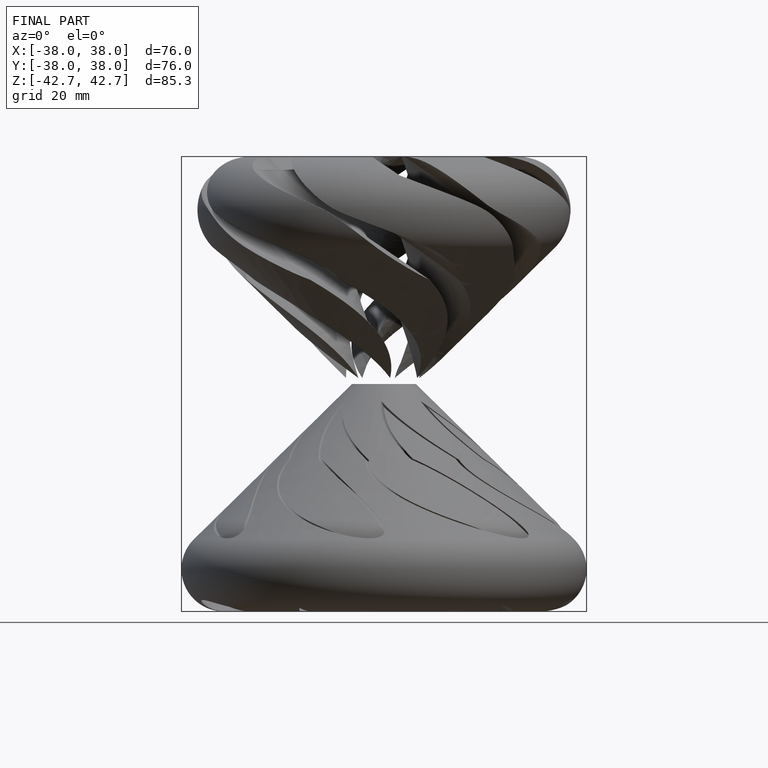
[diagram: finished part — front view with bounding-box wireframe]
